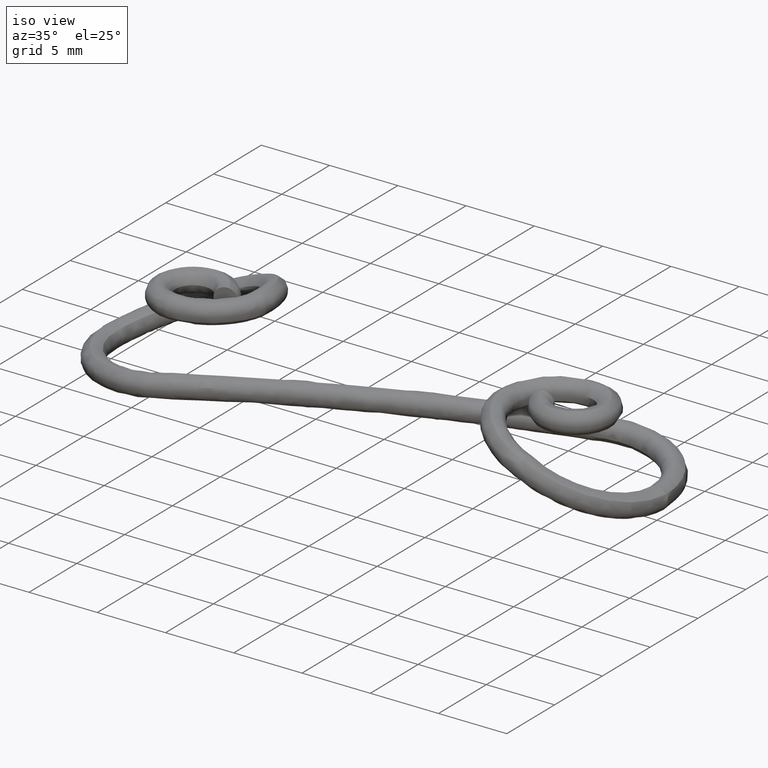
[diagram: clean part render]
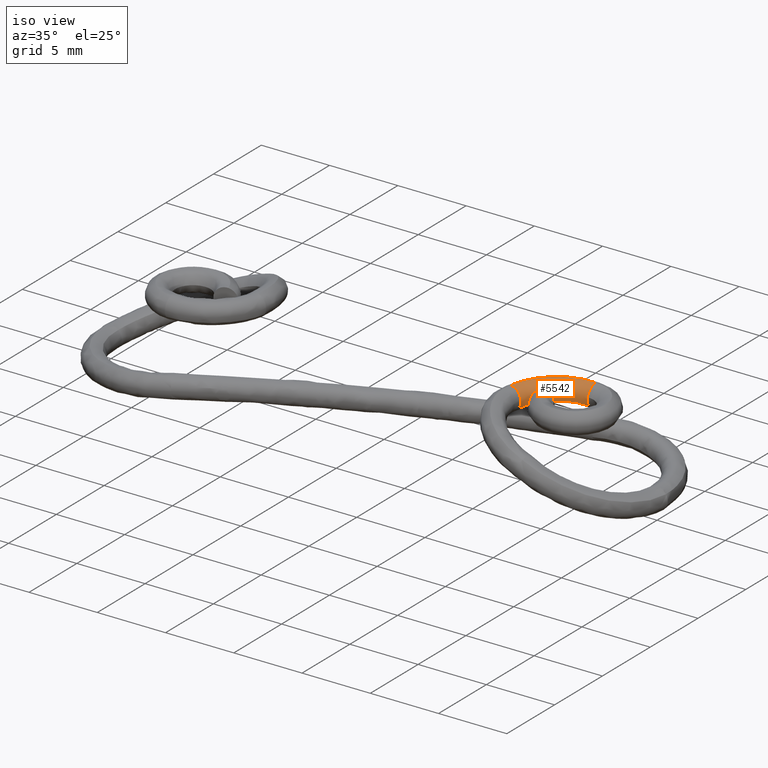
[diagram: same view with one face highlighted and labeled with its STEP entity id]
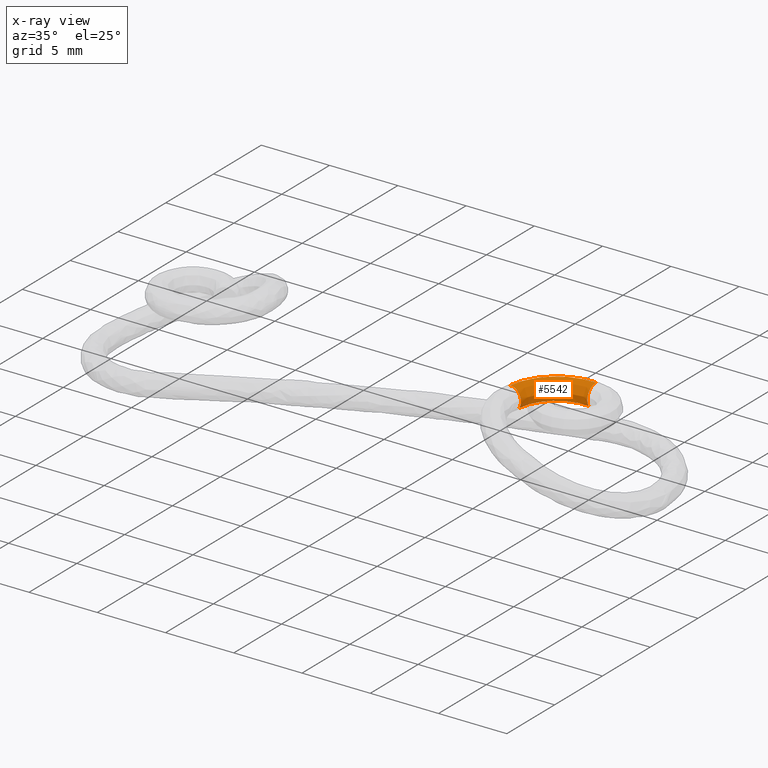
[diagram: x-ray of the same camera — body ghosted, the highlighted face saturated]
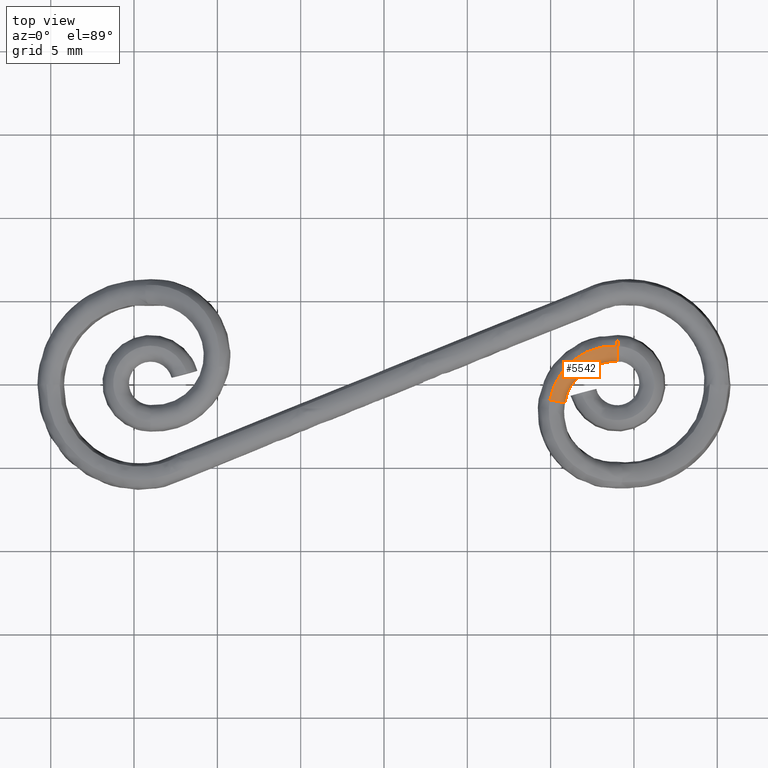
[diagram: same view with one face highlighted and labeled with its STEP entity id]
A machine part, iso view. The second image highlights one B-rep face of the part: STEP entity #5542.
The next image is the same camera in x-ray: the body ghosted, the highlighted face saturated — about 0% of this face is hidden behind the body in this view.
A second angle (top view) of the same face is appended — the face is thin or edge-on in the first view.
In plain terms, the highlighted face is a freeform B-spline surface patch.
Its self-contained STEP definition (entity closure, byte-faithful):
#4768=CARTESIAN_POINT('',(9.945481316624836,-1.013603917874896,4.066437259172098));
#4769=VERTEX_POINT('',#4768);
#4949=CARTESIAN_POINT('',(10.722932929362081,-1.173111546270209,2.829531334773518));
#4950=VERTEX_POINT('',#4949);
#4964=CARTESIAN_POINT('',(10.856862764925500,-1.182853981254470,3.335038600562635));
#4965=VERTEX_POINT('',#4964);
#4966=CARTESIAN_POINT('',(10.722932929362081,-1.173111546270209,2.829531334773518));
#4967=CARTESIAN_POINT('',(10.734271605313110,-1.174576923856175,2.846596200222114));
#4968=CARTESIAN_POINT('',(10.744879171196910,-1.175911322744557,2.864026848160906));
#4969=CARTESIAN_POINT('',(10.780156821556879,-1.180216759903316,2.927313209080170));
#4970=CARTESIAN_POINT('',(10.800997898043830,-1.182501777228305,2.975084467952228));
#4971=CARTESIAN_POINT('',(10.825550412505230,-1.184727313525764,3.050097729680638));
#4972=CARTESIAN_POINT('',(10.832580229589190,-1.185263274133793,3.075642404998806));
#4973=CARTESIAN_POINT('',(10.844088166160780,-1.185909095647748,3.126761067335342));
#4974=CARTESIAN_POINT('',(10.853140178976171,-1.186138025007386,3.178180516304168));
#4975=CARTESIAN_POINT('',(10.857324447951420,-1.185540670517773,3.230196137048003));
#4976=CARTESIAN_POINT('',(10.859004823519260,-1.184518287517574,3.282518419483989));
#4977=CARTESIAN_POINT('',(10.858570935280380,-1.183785546380630,3.309040359489154));
#4978=CARTESIAN_POINT('',(10.856862764925500,-1.182853981254470,3.335038600562635));
#4979=B_SPLINE_CURVE_WITH_KNOTS('',3,(#4966,#4967,#4968,#4969,#4970,#4971,#4972,#4973,#4974,#4975,#4976,#4977,#4978),.UNSPECIFIED.,.F.,.U.,(4,2,2,2,1,2,4),(0.788081715581043,0.812499999999999,0.874999999999999,0.906249999999999,0.937500000000000,0.968750000000000,1.0),.UNSPECIFIED.);
#4980=EDGE_CURVE('',#4950,#4965,#4979,.T.);
#4982=CARTESIAN_POINT('',(9.945481316624836,-1.013603917874896,4.066437259172098));
#4983=CARTESIAN_POINT('',(9.968763217995077,-1.017392768143288,4.070299437361057));
#4984=CARTESIAN_POINT('',(9.992086753561006,-1.021214129083701,4.073033343641861));
#4985=CARTESIAN_POINT('',(10.066713159254590,-1.033519386348582,4.078329526000693));
#4986=CARTESIAN_POINT('',(10.118165692927191,-1.042120175121660,4.076835871981592));
#4987=CARTESIAN_POINT('',(10.221449503736890,-1.059619662447316,4.063576159707641));
#4988=CARTESIAN_POINT('',(10.271784411729071,-1.068265174169786,4.051987951855393));
#4989=CARTESIAN_POINT('',(10.345022523117651,-1.081021064099900,4.027528472215471));
#4990=CARTESIAN_POINT('',(10.369076140612730,-1.085241012482742,4.018181603148466));
#4991=CARTESIAN_POINT('',(10.416439099152720,-1.093615176647041,3.997014024497891));
#4992=CARTESIAN_POINT('',(10.439794027467491,-1.097778002985917,3.985149616127812));
#4993=CARTESIAN_POINT('',(10.507158609295081,-1.109889495200961,3.946529441830582));
#4994=CARTESIAN_POINT('',(10.548975747830539,-1.117550846878140,3.916520549340468));
#4995=CARTESIAN_POINT('',(10.626444361770689,-1.132056893335772,3.848007077557726));
#4996=CARTESIAN_POINT('',(10.662305786121880,-1.138943647010195,3.809208672114488));
#4997=CARTESIAN_POINT('',(10.725046589314211,-1.151354752629877,3.726628163894747));
#4998=CARTESIAN_POINT('',(10.752362961074629,-1.156958723538845,3.682548894362327));
#4999=CARTESIAN_POINT('',(10.787150916281041,-1.164449881908231,3.612174284931967));
#5000=CARTESIAN_POINT('',(10.797697083453880,-1.166792129112845,3.587975935391328));
#5001=CARTESIAN_POINT('',(10.816217641125760,-1.171062906415299,3.539163307434681));
#5002=CARTESIAN_POINT('',(10.832301641023420,-1.174948536969395,3.489683103330812));
#5003=CARTESIAN_POINT('',(10.843485758144070,-1.178059836909178,3.438860426412052));
#5004=CARTESIAN_POINT('',(10.852117804963459,-1.180767770148851,3.387338527514907));
#5005=CARTESIAN_POINT('',(10.855155889963870,-1.181925675669526,3.361011252024533));
#5006=CARTESIAN_POINT('',(10.856862764925500,-1.182853981254470,3.335038600562635));
#5007=B_SPLINE_CURVE_WITH_KNOTS('',3,(#4982,#4983,#4984,#4985,#4986,#4987,#4988,#4989,#4990,#4991,#4992,#4993,#4994,#4995,#4996,#4997,#4998,#4999,#5000,#5001,#5002,#5003,#5004,#5005,#5006),.UNSPECIFIED.,.F.,.U.,(4,2,2,2,2,2,2,2,2,2,1,2,4),(0.471515581245947,0.500000000000010,0.562500000000010,0.625000000000011,0.656250000000010,0.687500000000009,0.750000000000007,0.812500000000005,0.875000000000003,0.906250000000002,0.937500000000002,0.968750000000001,1.0),.UNSPECIFIED.);
#5008=EDGE_CURVE('',#4769,#4965,#5007,.T.);
#5177=CARTESIAN_POINT('',(13.977222766019240,1.439108920414592,2.849247982385545));
#5178=VERTEX_POINT('',#5177);
#5205=CARTESIAN_POINT('',(10.722932929362081,-1.173111546270209,2.829531334773518));
#5206=CARTESIAN_POINT('',(10.724278081945810,-1.164863342010870,2.829738339022690));
#5207=CARTESIAN_POINT('',(10.725589936140770,-1.156819963638378,2.829940201069816));
#5208=CARTESIAN_POINT('',(10.743748068598590,-1.045498779496799,2.832733961198222));
#5209=CARTESIAN_POINT('',(10.761585509203730,-0.963073535632809,2.834731339267771));
#5210=CARTESIAN_POINT('',(10.808961762006231,-0.780134763551409,2.839038207624336));
#5211=CARTESIAN_POINT('',(10.836837949883339,-0.689785146752969,2.841092697227948));
#5212=CARTESIAN_POINT('',(10.932690103512980,-0.423141226777199,2.846935847007690));
#5213=CARTESIAN_POINT('',(11.012930670775360,-0.251258971481862,2.850403325978216));
#5214=CARTESIAN_POINT('',(11.298591681123970,0.238089934700815,2.859347858426926));
#5215=CARTESIAN_POINT('',(11.549025739125369,0.528542280498056,2.863345928692363));
#5216=CARTESIAN_POINT('',(12.138368932620560,1.001356687045959,2.866909577570695));
#5217=CARTESIAN_POINT('',(12.476225325882821,1.182874160636790,2.866468790447811));
#5218=CARTESIAN_POINT('',(13.015915899017431,1.355682930057993,2.862515005797252));
#5219=CARTESIAN_POINT('',(13.201126228554481,1.396764885808168,2.860652659118121));
#5220=CARTESIAN_POINT('',(13.482243919455090,1.432553869605738,2.857088976003830));
#5221=CARTESIAN_POINT('',(13.576500666579930,1.440188265892128,2.855773001583805));
#5222=CARTESIAN_POINT('',(13.765386037091091,1.446795925244798,2.852894763401491));
#5223=CARTESIAN_POINT('',(13.849730434641449,1.446348551357812,2.851515262503323));
#5224=CARTESIAN_POINT('',(13.961849177718490,1.439982209894644,2.849521389434121));
#5225=CARTESIAN_POINT('',(13.969443417122379,1.439550870329269,2.849386333244135));
#5226=CARTESIAN_POINT('',(13.977222766019240,1.439108920414592,2.849247982385545));
#5227=B_SPLINE_CURVE_WITH_KNOTS('',3,(#5205,#5206,#5207,#5208,#5209,#5210,#5211,#5212,#5213,#5214,#5215,#5216,#5217,#5218,#5219,#5220,#5221,#5222,#5223,#5224,#5225,#5226),.UNSPECIFIED.,.F.,.U.,(4,2,2,2,2,2,2,2,2,2,4),(-0.004690423051319,0.0,0.062500000000000,0.125000000000000,0.250000000000000,0.500000000000000,0.750000000000000,0.875000000000000,0.937500000000000,1.0,1.004386766889564),.UNSPECIFIED.);
#5228=EDGE_CURVE('',#4950,#5178,#5227,.T.);
#5233=CARTESIAN_POINT('',(14.010598828068220,2.223834789855833,4.090351000279215));
#5234=VERTEX_POINT('',#5233);
#5235=CARTESIAN_POINT('',(9.945481316624836,-1.013603917874896,4.066437259172098));
#5236=CARTESIAN_POINT('',(9.963502119791386,-0.909739055474956,4.069026338987561));
#5237=CARTESIAN_POINT('',(9.986270336150367,-0.803792943267293,4.071596200813586));
#5238=CARTESIAN_POINT('',(10.042923425067331,-0.585033838369071,4.076746218829854));
#5239=CARTESIAN_POINT('',(10.078178432367050,-0.470769272921904,4.079344432582950));
#5240=CARTESIAN_POINT('',(10.199402545790750,-0.133546498609177,4.086733960314437));
#5241=CARTESIAN_POINT('',(10.300882610434410,0.083831786706494,4.091119070346838));
#5242=CARTESIAN_POINT('',(10.662157225456800,0.702707773862347,4.102430575032636));
#5243=CARTESIAN_POINT('',(10.978880170425020,1.070040522374885,4.107486486528388));
#5244=CARTESIAN_POINT('',(11.724219754404020,1.668004628943284,4.111992558414138));
#5245=CARTESIAN_POINT('',(12.151504995231891,1.897567845251591,4.111434669619201));
#5246=CARTESIAN_POINT('',(12.834048672606110,2.116116685716465,4.106433738480265));
#5247=CARTESIAN_POINT('',(13.068283117218090,2.168072313296127,4.104078245207694));
#5248=CARTESIAN_POINT('',(13.423811005337610,2.213333698935546,4.099570999374536));
#5249=CARTESIAN_POINT('',(13.543016950449500,2.222988629237328,4.097906604473846));
#5250=CARTESIAN_POINT('',(13.778349855506100,2.231220648814439,4.094320426178091));
#5251=CARTESIAN_POINT('',(13.896553023757789,2.229993282514239,4.092370413681682));
#5252=CARTESIAN_POINT('',(14.010598828068220,2.223834789855833,4.090351000279215));
#5253=B_SPLINE_CURVE_WITH_KNOTS('',3,(#5235,#5236,#5237,#5238,#5239,#5240,#5241,#5242,#5243,#5244,#5245,#5246,#5247,#5248,#5249,#5250,#5251,#5252),.UNSPECIFIED.,.F.,.U.,(4,2,2,2,2,2,2,2,4),(0.006808814426573,0.062500000000000,0.125000000000000,0.250000000000000,0.500000000000000,0.750000000000000,0.875000000000000,0.937500000000000,0.998142766915074),.UNSPECIFIED.);
#5254=EDGE_CURVE('',#4769,#5234,#5253,.T.);
#5301=CARTESIAN_POINT('',(9.927174739729924,-1.124615588101888,4.063654569472694));
#5302=CARTESIAN_POINT('',(10.131107705252560,-1.158258879435827,4.097487252040589));
#5303=CARTESIAN_POINT('',(10.347875223292640,-1.191823328851650,4.046052345998225));
#5304=CARTESIAN_POINT('',(10.684685483635350,-1.239842981098486,3.801689151398291));
#5305=CARTESIAN_POINT('',(10.802654204698021,-1.254002486943919,3.610265610514811));
#5306=CARTESIAN_POINT('',(10.869740797634220,-1.254613478527958,3.205283443612696));
#5307=CARTESIAN_POINT('',(10.825035463370410,-1.242147091684886,2.995261700237720));
#5308=CARTESIAN_POINT('',(10.715238465145170,-1.220296983232296,2.828347233284297));
#5309=CARTESIAN_POINT('',(9.931102264779387,-1.100527581241713,4.064259111704511));
#5310=CARTESIAN_POINT('',(10.135069187842580,-1.133962649667213,4.098097019976915));
#5311=CARTESIAN_POINT('',(10.351873037160781,-1.167304321296451,4.046667704916783));
#5312=CARTESIAN_POINT('',(10.688740193732089,-1.214975095684638,3.802313265989186));
#5313=CARTESIAN_POINT('',(10.806729129387760,-1.229010649789502,3.610892835879843));
#5314=CARTESIAN_POINT('',(10.873828019694230,-1.229546238230759,3.205912561339646));
#5315=CARTESIAN_POINT('',(10.829115789924421,-1.217122134944983,2.995889756784229));
#5316=CARTESIAN_POINT('',(10.719300911625810,-1.195381665547411,2.828972538251628));
#5317=CARTESIAN_POINT('',(9.935053267003013,-1.076299084899096,4.064867170585929));
#5318=CARTESIAN_POINT('',(10.139021636047859,-1.109725139307511,4.098705305470055));
#5319=CARTESIAN_POINT('',(10.355827032076920,-1.143057166778876,4.047276232869094));
#5320=CARTESIAN_POINT('',(10.692696610205861,-1.190712837970046,3.802922173654504));
#5321=CARTESIAN_POINT('',(10.810686405796771,-1.204743026038729,3.611501878460795));
#5322=CARTESIAN_POINT('',(10.877785818086890,-1.205275349990340,3.206521686016995));
#5323=CARTESIAN_POINT('',(10.833073293882300,-1.192853077037705,2.996498835460467));
#5324=CARTESIAN_POINT('',(10.723257653619051,-1.171117353843130,2.829581497618454));
#5325=CARTESIAN_POINT('',(9.957990377055120,-0.935687360265441,4.068395964910555));
#5326=CARTESIAN_POINT('',(10.161342934752160,-0.972886996806387,4.102139401971529));
#5327=CARTESIAN_POINT('',(10.377489466413520,-1.010256380598394,4.050609012274109));
#5328=CARTESIAN_POINT('',(10.713327225683519,-1.064234692167424,3.806096287196125));
#5329=CARTESIAN_POINT('',(10.830950420551220,-1.080511230531526,3.614619620273415));
#5330=CARTESIAN_POINT('',(10.897826795103480,-1.082410066000248,3.209605135895234));
#5331=CARTESIAN_POINT('',(10.853239305480900,-1.069221494372870,2.999601515847664));
#5332=CARTESIAN_POINT('',(10.743747905765931,-1.045498802877985,2.832734041070756));
#5333=CARTESIAN_POINT('',(9.983003554754809,-0.816394788861279,4.071299714837167));
#5334=CARTESIAN_POINT('',(10.184550149781501,-0.862873450132366,4.104815023667295));
#5335=CARTESIAN_POINT('',(10.398764462630099,-0.910170463865261,4.053040559850871));
#5336=CARTESIAN_POINT('',(10.731576264594500,-0.979695788027195,3.808145606820880));
#5337=CARTESIAN_POINT('',(10.848124354307901,-1.001495973140574,3.616533139760780));
#5338=CARTESIAN_POINT('',(10.914346652830391,-1.006754980280256,3.211436045800728));
#5339=CARTESIAN_POINT('',(10.870125854802630,-0.991682122274844,3.001478752342811));
#5340=CARTESIAN_POINT('',(10.761585347013240,-0.963073587287203,2.834731398348871));
#5341=CARTESIAN_POINT('',(10.042920460691670,-0.585033323082306,4.076746516928810));
#5342=CARTESIAN_POINT('',(10.241310839725561,-0.643699357011002,4.109974905663024));
#5343=CARTESIAN_POINT('',(10.452148291248999,-0.704035641012142,4.057893466447585));
#5344=CARTESIAN_POINT('',(10.779671763915919,-0.793980911469665,3.812517780151595));
#5345=CARTESIAN_POINT('',(10.894340950304700,-0.823036029997041,3.620734515499750));
#5346=CARTESIAN_POINT('',(10.959420181698500,-0.832708388422114,3.215533522612929));
#5347=CARTESIAN_POINT('',(10.915840255891650,-0.815160643845584,3.005634494911858));
#5348=CARTESIAN_POINT('',(10.808961601300529,-0.780134880577123,2.839038218632947));
#5349=CARTESIAN_POINT('',(10.078175529387710,-0.470768767154164,4.079344782063395));
#5350=CARTESIAN_POINT('',(10.274708791861441,-0.535453888083921,4.112436302496301));
#5351=CARTESIAN_POINT('',(10.483559301458920,-0.602229992805961,4.060208428107455));
#5352=CARTESIAN_POINT('',(10.807971130568459,-0.702260243186716,3.814603419707665));
#5353=CARTESIAN_POINT('',(10.921534776306160,-0.734898419297203,3.622738680252475));
#5354=CARTESIAN_POINT('',(10.985941438208229,-0.746750436276190,3.217488125015610));
#5355=CARTESIAN_POINT('',(10.942738606719740,-0.727980395910139,3.007616891646417));
#5356=CARTESIAN_POINT('',(10.836837789945159,-0.689785297571085,2.841092683386442));
#5357=CARTESIAN_POINT('',(10.199399832358679,-0.133546022229274,4.086734468423608));
#5358=CARTESIAN_POINT('',(10.389547409918340,-0.215994946848573,4.119436723762216));
#5359=CARTESIAN_POINT('',(10.591565836619260,-0.301776541983195,4.066792375362140));
#5360=CARTESIAN_POINT('',(10.905278316712920,-0.431570038263897,3.820535155667180));
#5361=CARTESIAN_POINT('',(11.015040581132240,-0.474782692772198,3.628438695136070));
#5362=CARTESIAN_POINT('',(11.077134644268749,-0.493067408811425,3.223047180745870));
#5363=CARTESIAN_POINT('',(11.035228462961550,-0.470690069288065,3.013254997010605));
#5364=CARTESIAN_POINT('',(10.932689945943780,-0.423141481895616,2.846935756466264));
#5365=CARTESIAN_POINT('',(10.300880030533300,0.083832242383455,4.091119690205692));
#5366=CARTESIAN_POINT('',(10.485681972319099,-0.010067467442047,4.123590945999795));
#5367=CARTESIAN_POINT('',(10.681981077764540,-0.108100253200088,4.070699451725360));
#5368=CARTESIAN_POINT('',(10.986736856275320,-0.257079527098665,3.824055194093930));
#5369=CARTESIAN_POINT('',(11.093316894237800,-0.307108625792433,3.631821224816395));
#5370=CARTESIAN_POINT('',(11.153475048415350,-0.329539934001132,3.226346062320400));
#5371=CARTESIAN_POINT('',(11.112654345019600,-0.304837275597573,3.016600788860485));
#5372=CARTESIAN_POINT('',(11.012930514874260,-0.251259300043148,2.850403181428679));
#5373=CARTESIAN_POINT('',(10.662155060899069,0.702708165143532,4.102431542484962));
#5374=CARTESIAN_POINT('',(10.827926240419901,0.576208065980048,4.134306925669209));
#5375=CARTESIAN_POINT('',(11.003864258571380,0.443296143941772,4.080777909062560));
#5376=CARTESIAN_POINT('',(11.276733734209040,0.239694980642802,3.833135272845100));
#5377=CARTESIAN_POINT('',(11.371984907110759,0.170259481286200,3.640546595159680));
#5378=CARTESIAN_POINT('',(11.425251194190700,0.136022859723363,3.234855660853643));
#5379=CARTESIAN_POINT('',(11.388294890368609,0.167345719265589,3.025231395230331));
#5380=CARTESIAN_POINT('',(11.298591530409279,0.238089377794226,2.859347545957769));
#5381=CARTESIAN_POINT('',(10.978878302124960,1.070040867723612,4.107487701913475));
#5382=CARTESIAN_POINT('',(11.127965549962299,0.924190860288309,4.139096742313040));
#5383=CARTESIAN_POINT('',(11.286053382369699,0.770576494096465,4.085282766957885));
#5384=CARTESIAN_POINT('',(11.530968764765200,0.534554633510155,3.837193878143685));
#5385=CARTESIAN_POINT('',(11.616288166799260,0.453600522250147,3.644446654561355));
#5386=CARTESIAN_POINT('',(11.663512563347931,0.412356926890613,3.238659277567770));
#5387=CARTESIAN_POINT('',(11.629944152487930,0.447609220835524,3.029089101352090));
#5388=CARTESIAN_POINT('',(11.549025592107229,0.528541560840908,2.863345496540377));
#5389=CARTESIAN_POINT('',(11.724218480074359,1.668004882201499,4.111994270882460));
#5390=CARTESIAN_POINT('',(11.834043661598299,1.490656037236328,4.143365918342030));
#5391=CARTESIAN_POINT('',(11.950124925916761,1.303341125707670,4.089297959320080));
#5392=CARTESIAN_POINT('',(12.129256421819420,1.014543165696986,3.840811329033775));
#5393=CARTESIAN_POINT('',(12.191203591617720,0.914838486741372,3.647922796869820));
#5394=CARTESIAN_POINT('',(12.224209822964781,0.862188670877158,3.242049468482188));
#5395=CARTESIAN_POINT('',(12.198614158374109,0.903837568336187,3.032527506651154));
#5396=CARTESIAN_POINT('',(12.138368793008411,1.001355641320914,2.866908905636258));
#5397=CARTESIAN_POINT('',(12.151504017553950,1.897568052516252,4.111436630350060));
#5398=CARTESIAN_POINT('',(12.238821198175660,1.708126544585405,4.142837651708155));
#5399=CARTESIAN_POINT('',(12.330821116373579,1.507873731071580,4.088801121461800));
#5400=CARTESIAN_POINT('',(12.472240328612081,1.198814642734986,3.840363712783295));
#5401=CARTESIAN_POINT('',(12.520788786800781,1.091911502077414,3.647492670355225));
#5402=CARTESIAN_POINT('',(12.545644141350920,1.034882814407566,3.241629986794414));
#5403=CARTESIAN_POINT('',(12.524619088372109,1.078987454741743,3.032102063814404));
#5404=CARTESIAN_POINT('',(12.476225189966870,1.182872952176864,2.866467998842072));
#5405=CARTESIAN_POINT('',(12.834048111416580,2.116116828407823,4.106436047762850));
#5406=CARTESIAN_POINT('',(12.885411099934020,1.915162847021180,4.138100482408000));
#5407=CARTESIAN_POINT('',(12.938943586030220,1.702592903223080,4.084345780521876));
#5408=CARTESIAN_POINT('',(13.020121397820400,1.374244886768940,3.836349729397930));
#5409=CARTESIAN_POINT('',(13.047266844129300,1.260488726270548,3.643635498356340));
#5410=CARTESIAN_POINT('',(13.059102093784880,1.199291396101591,3.237868215115709));
#5411=CARTESIAN_POINT('',(13.045378153671111,1.245734022814777,3.028286806616546));
#5412=CARTESIAN_POINT('',(13.015915768286851,1.355681493298317,2.862514046305395));
#5413=CARTESIAN_POINT('',(13.068282690032669,2.168072435211185,4.104080666635930));
#5414=CARTESIAN_POINT('',(13.107306965326099,1.964381589520695,4.135869174726190));
#5415=CARTESIAN_POINT('',(13.147638250147580,1.748883497582245,4.082247219850995));
#5416=CARTESIAN_POINT('',(13.208142504178619,1.415949943362534,3.834459056667325));
#5417=CARTESIAN_POINT('',(13.227942898313520,1.300564630213446,3.641818686416715));
#5418=CARTESIAN_POINT('',(13.235309936637860,1.238376322975037,3.236096337209690));
#5419=CARTESIAN_POINT('',(13.224091588587701,1.285374777409838,3.026489735071015));
#5420=CARTESIAN_POINT('',(13.201126099491569,1.396763375624448,2.860651645631995));
#5421=CARTESIAN_POINT('',(13.423810768534530,2.213333791333295,4.099573580130361));
#5422=CARTESIAN_POINT('',(13.444106983139539,2.007258706532105,4.131599506342235));
#5423=CARTESIAN_POINT('',(13.464401101128701,1.789209752992110,4.078231566347570));
#5424=CARTESIAN_POINT('',(13.493526435116941,1.452281528716882,3.830841201508300));
#5425=CARTESIAN_POINT('',(13.502178302181500,1.335477005623770,3.638342165145650));
#5426=CARTESIAN_POINT('',(13.502763375043751,1.272425476804172,3.232705796797186));
#5427=CARTESIAN_POINT('',(13.495348096220489,1.319908181214613,3.023050985066826));
#5428=CARTESIAN_POINT('',(13.482243792760411,1.432552255154942,2.857087885842216));
#5429=CARTESIAN_POINT('',(13.543016775341950,2.222988712069662,4.097909236861562));
#5430=CARTESIAN_POINT('',(13.557033605659999,2.016405031386060,4.130022835088435));
#5431=CARTESIAN_POINT('',(13.570609406047700,1.797811943278160,4.076748695790619));
#5432=CARTESIAN_POINT('',(13.589213615416799,1.460031608294154,3.829505226832125));
#5433=CARTESIAN_POINT('',(13.594127462789320,1.342924356215398,3.637058381093285));
#5434=CARTESIAN_POINT('',(13.592438594068900,1.279688710134643,3.231453762899800));
#5435=CARTESIAN_POINT('',(13.586298458388580,1.327274723207885,3.021781148578019));
#5436=CARTESIAN_POINT('',(13.576500540652500,1.440186617660833,2.855771886580827));
#5437=CARTESIAN_POINT('',(13.781899078943310,2.231344868048020,4.094269071907823));
#5438=CARTESIAN_POINT('',(13.783332366783640,2.024321000105455,4.126574421842955));
#5439=CARTESIAN_POINT('',(13.783445027498781,1.805256980339790,4.073505438505495));
#5440=CARTESIAN_POINT('',(13.780965482832199,1.466739196334472,3.826583252348665));
#5441=CARTESIAN_POINT('',(13.778388546071501,1.349369967979830,3.634250555045270));
#5442=CARTESIAN_POINT('',(13.772142828322281,1.285975036727404,3.228715378748607));
#5443=CARTESIAN_POINT('',(13.768558012379470,1.333650495772302,3.019003827320583));
#5444=CARTESIAN_POINT('',(13.765385912647870,1.446794211667559,2.852893600344685));
#5445=CARTESIAN_POINT('',(13.903795327181470,2.229913206054270,4.092253581182733));
#5446=CARTESIAN_POINT('',(13.895777324504580,2.023136989241705,4.124718993842220));
#5447=CARTESIAN_POINT('',(13.885778044951520,1.804337950274005,4.071821262210290));
#5448=CARTESIAN_POINT('',(13.867462845468300,1.466235170558002,3.825167263230520));
#5449=CARTESIAN_POINT('',(13.859259707472861,1.349013410167726,3.632929849947300));
#5450=CARTESIAN_POINT('',(13.849591421283060,1.285708249300848,3.227452639175487));
#5451=CARTESIAN_POINT('',(13.847925866365509,1.333333461590847,3.017708585227354));
#5452=CARTESIAN_POINT('',(13.849730310840121,1.446346809519264,2.851514078663834));
#5453=CARTESIAN_POINT('',(14.041164424996810,2.222114002885150,4.089810660278688));
#5454=CARTESIAN_POINT('',(14.029459809603150,2.015546852721325,4.122341627552940));
#5455=CARTESIAN_POINT('',(14.015516221554931,1.796971501575387,4.069514033034056));
#5456=CARTESIAN_POINT('',(13.991024096383089,1.459219038543280,3.822969871617850));
#5457=CARTESIAN_POINT('',(13.980626377669070,1.342121749823626,3.630771482423386));
#5458=CARTESIAN_POINT('',(13.969623070163070,1.278892332478714,3.225318011703099));
#5459=CARTESIAN_POINT('',(13.968706151315150,1.326475106836719,3.015560646128099));
#5460=CARTESIAN_POINT('',(13.972451769294841,1.439378383891057,2.849331622348897));
#5461=CARTESIAN_POINT('',(14.060953294385360,2.220989697712384,4.089458720708316));
#5462=CARTESIAN_POINT('',(14.049148963309850,2.014428186401697,4.121991460663394));
#5463=CARTESIAN_POINT('',(14.035098689425331,1.795858868703044,4.069165762748338));
#5464=CARTESIAN_POINT('',(14.010439490510880,1.458115855076299,3.822624571502576));
#5465=CARTESIAN_POINT('',(13.999982412702691,1.341021924126868,3.630427237584892));
#5466=CARTESIAN_POINT('',(13.988942995539441,1.277794550837486,3.224974408856396));
#5467=CARTESIAN_POINT('',(13.988046325868311,1.325376181130886,3.015216683332716));
#5468=CARTESIAN_POINT('',(13.991844448827500,1.438276489807828,2.848986726174600));
#5469=CARTESIAN_POINT('',(14.080607412770849,2.219872606318721,4.089109165383324));
#5470=CARTESIAN_POINT('',(14.068894285094990,2.013305905123419,4.121640283084774));
#5471=CARTESIAN_POINT('',(14.054941589781240,1.794731034847977,4.068812849521933));
#5472=CARTESIAN_POINT('',(14.030435202365380,1.456979325845941,3.822268940194606));
#5473=CARTESIAN_POINT('',(14.020032416497379,1.339882305642671,3.630070640580626));
#5474=CARTESIAN_POINT('',(14.009026026602751,1.276653053351823,3.224617224400381));
#5475=CARTESIAN_POINT('',(14.008110836400579,1.324235737741215,3.014859828310582));
#5476=CARTESIAN_POINT('',(14.011860936542730,1.437138779275540,2.848630725348146));
#5477=B_SPLINE_SURFACE_WITH_KNOTS('',3,3,((#5301,#5309,#5317,#5325,#5333,#5341,#5349,#5357,#5365,#5373,#5381,#5389,#5397,#5405,#5413,#5421,#5429,#5437,#5445,#5453,#5461,#5469),(#5302,#5310,#5318,#5326,#5334,#5342,#5350,#5358,#5366,#5374,#5382,#5390,#5398,#5406,#5414,#5422,#5430,#5438,#5446,#5454,#5462,#5470),(#5303,#5311,#5319,#5327,#5335,#5343,#5351,#5359,#5367,#5375,#5383,#5391,#5399,#5407,#5415,#5423,#5431,#5439,#5447,#5455,#5463,#5471),(#5304,#5312,#5320,#5328,#5336,#5344,#5352,#5360,#5368,#5376,#5384,#5392,#5400,#5408,#5416,#5424,#5432,#5440,#5448,#5456,#5464,#5472),(#5305,#5313,#5321,#5329,#5337,#5345,#5353,#5361,#5369,#5377,#5385,#5393,#5401,#5409,#5417,#5425,#5433,#5441,#5449,#5457,#5465,#5473),(#5306,#5314,#5322,#5330,#5338,#5346,#5354,#5362,#5370,#5378,#5386,#5394,#5402,#5410,#5418,#5426,#5434,#5442,#5450,#5458,#5466,#5474),(#5307,#5315,#5323,#5331,#5339,#5347,#5355,#5363,#5371,#5379,#5387,#5395,#5403,#5411,#5419,#5427,#5435,#5443,#5451,#5459,#5467,#5475),(#5308,#5316,#5324,#5332,#5340,#5348,#5356,#5364,#5372,#5380,#5388,#5396,#5404,#5412,#5420,#5428,#5436,#5444,#5452,#5460,#5468,#5476)),.UNSPECIFIED.,.F.,.F.,.U.,(4,2,2,4),(4,2,2,2,2,2,2,2,2,2,4),(0.0,0.628321359651314,1.256642719302628,1.859831224567890),(0.0,0.076919566191071,0.437842379330687,0.798765192470303,1.520610818749534,2.964302071307996,4.407993323866459,5.129838950145691,5.490761763285306,5.851684576424921,5.913544070696020),.UNSPECIFIED.);
#5478=CARTESIAN_POINT('',(13.979356338231071,1.319052151867455,3.473193301477692));
#5479=VERTEX_POINT('',#5478);
#5480=CARTESIAN_POINT('',(13.977222766019240,1.439108920414592,2.849247982385545));
#5481=CARTESIAN_POINT('',(13.977002559027810,1.424750072600320,2.870357500210515));
#5482=CARTESIAN_POINT('',(13.976818074146131,1.411414992653586,2.892214617792638));
#5483=CARTESIAN_POINT('',(13.976517437502380,1.386546561178008,2.937860241667704));
#5484=CARTESIAN_POINT('',(13.976402783830510,1.375030917654341,2.961760864516741));
#5485=CARTESIAN_POINT('',(13.976251643705030,1.354593459893835,3.010069992612908));
#5486=CARTESIAN_POINT('',(13.976176635126210,1.336607212901161,3.059113710105796));
#5487=CARTESIAN_POINT('',(13.976249403991311,1.323379452354040,3.109583471310285));
#5488=CARTESIAN_POINT('',(13.976396655085971,1.312550237816171,3.160772039114984));
#5489=CARTESIAN_POINT('',(13.976508183191150,1.308323134978767,3.186837803751113));
#5490=CARTESIAN_POINT('',(13.976955028848010,1.299490880406503,3.265371628630795));
#5491=CARTESIAN_POINT('',(13.977396057496890,1.298717685701009,3.317493554642994));
#5492=CARTESIAN_POINT('',(13.978274038648710,1.305292882188655,3.395322647969651));
#5493=CARTESIAN_POINT('',(13.978603231933430,1.308790249147404,3.421205959806140));
#5494=CARTESIAN_POINT('',(13.979094887669129,1.315296914706152,3.455761154048937));
#5495=CARTESIAN_POINT('',(13.979223607901909,1.317099480359738,3.464491400115775));
#5496=CARTESIAN_POINT('',(13.979356338231071,1.319052151867455,3.473193301477692));
#5497=B_SPLINE_CURVE_WITH_KNOTS('',3,(#5480,#5481,#5482,#5483,#5484,#5485,#5486,#5487,#5488,#5489,#5490,#5491,#5492,#5493,#5494,#5495,#5496),.UNSPECIFIED.,.F.,.U.,(4,2,2,1,2,2,2,2,4),(0.406847325970618,0.437500000000000,0.468750000000000,0.500000000000000,0.531250000000000,0.562500000000000,0.624999999999999,0.656249999999999,0.666820777132180),.UNSPECIFIED.);
#5498=EDGE_CURVE('',#5178,#5479,#5497,.T.);
#5499=ORIENTED_EDGE('',*,*,#5498,.T.);
#5500=CARTESIAN_POINT('',(13.999934120337681,1.859367918614150,4.062176163408180));
#5501=VERTEX_POINT('',#5500);
#5502=CARTESIAN_POINT('',(13.979356338231071,1.319052151867455,3.473193301477692));
#5503=CARTESIAN_POINT('',(13.979615990609970,1.322872105027692,3.490216467657503));
#5504=CARTESIAN_POINT('',(13.979890989532651,1.327266508842381,3.507131160014197));
#5505=CARTESIAN_POINT('',(13.981045691755231,1.347017813741479,3.574000326423974));
#5506=CARTESIAN_POINT('',(13.982030793257239,1.366622288021576,3.622242725474004));
#5507=CARTESIAN_POINT('',(13.984226472340600,1.414971550172063,3.714885321114369));
#5508=CARTESIAN_POINT('',(13.985447469159009,1.444013087905736,3.759509700272305));
#5509=CARTESIAN_POINT('',(13.988021543265990,1.509125491242284,3.841138729625254));
#5510=CARTESIAN_POINT('',(13.989384032620320,1.545376411700875,3.878627231459993));
#5511=CARTESIAN_POINT('',(13.991548731521060,1.605674110048045,3.929529569368946));
#5512=CARTESIAN_POINT('',(13.992290132981999,1.626763556054721,3.945562047996599));
#5513=CARTESIAN_POINT('',(13.993780372162171,1.670006226828841,3.975055461354829));
#5514=CARTESIAN_POINT('',(13.995286189026430,1.714528635140644,4.002202623031433));
#5515=CARTESIAN_POINT('',(13.996821885794230,1.761504458230321,4.024851729761353));
#5516=CARTESIAN_POINT('',(13.998372357489790,1.809699367857218,4.045265785377004));
#5517=CARTESIAN_POINT('',(13.999157991203180,1.834517945779712,4.054377522857646));
#5518=CARTESIAN_POINT('',(13.999934120337681,1.859367918614150,4.062176163408180));
#5519=B_SPLINE_CURVE_WITH_KNOTS('',3,(#5502,#5503,#5504,#5505,#5506,#5507,#5508,#5509,#5510,#5511,#5512,#5513,#5514,#5515,#5516,#5517,#5518),.UNSPECIFIED.,.F.,.U.,(4,2,2,2,2,2,1,2,4),(0.666820777132180,0.687499999999999,0.750000000000000,0.812500000000001,0.875000000000001,0.906250000000001,0.937500000000001,0.968750000000000,1.0),.UNSPECIFIED.);
#5520=EDGE_CURVE('',#5479,#5501,#5519,.T.);
#5521=ORIENTED_EDGE('',*,*,#5520,.T.);
#5522=CARTESIAN_POINT('',(14.010598828068220,2.223834789855833,4.090351000279215));
#5523=CARTESIAN_POINT('',(14.010100590390181,2.205906535107320,4.093161282412045));
#5524=CARTESIAN_POINT('',(14.009594160036579,2.187831679477050,4.095344613531617));
#5525=CARTESIAN_POINT('',(14.008339271871611,2.143395040251870,4.099112549218563));
#5526=CARTESIAN_POINT('',(14.007583736204030,2.116934832111297,4.100004707735849));
#5527=CARTESIAN_POINT('',(14.006073414127879,2.064594922804185,4.099198370792344));
#5528=CARTESIAN_POINT('',(14.004555508089719,2.012539320368282,4.095832273907647));
#5529=CARTESIAN_POINT('',(14.003022182556901,1.961034753590057,4.087505112861544));
#5530=CARTESIAN_POINT('',(14.001480497351610,1.909807386048948,4.076682441773103));
#5531=CARTESIAN_POINT('',(14.000703488098409,1.884229357101637,4.069978604631898));
#5532=CARTESIAN_POINT('',(13.999934120337681,1.859367918614150,4.062176163408180));
#5533=B_SPLINE_CURVE_WITH_KNOTS('',3,(#5522,#5523,#5524,#5525,#5526,#5527,#5528,#5529,#5530,#5531,#5532),.UNSPECIFIED.,.F.,.U.,(4,2,2,1,2,4),(0.853273728018793,0.875000000000002,0.906250000000002,0.937500000000001,0.968750000000001,1.0),.UNSPECIFIED.);
#5534=EDGE_CURVE('',#5234,#5501,#5533,.T.);
#5535=ORIENTED_EDGE('',*,*,#5534,.F.);
#5536=ORIENTED_EDGE('',*,*,#5254,.F.);
#5537=ORIENTED_EDGE('',*,*,#5008,.T.);
#5538=ORIENTED_EDGE('',*,*,#4980,.F.);
#5539=ORIENTED_EDGE('',*,*,#5228,.T.);
#5540=EDGE_LOOP('',(#5499,#5521,#5535,#5536,#5537,#5538,#5539));
#5541=FACE_OUTER_BOUND('',#5540,.T.);
#5542=ADVANCED_FACE('',(#5541),#5477,.T.);